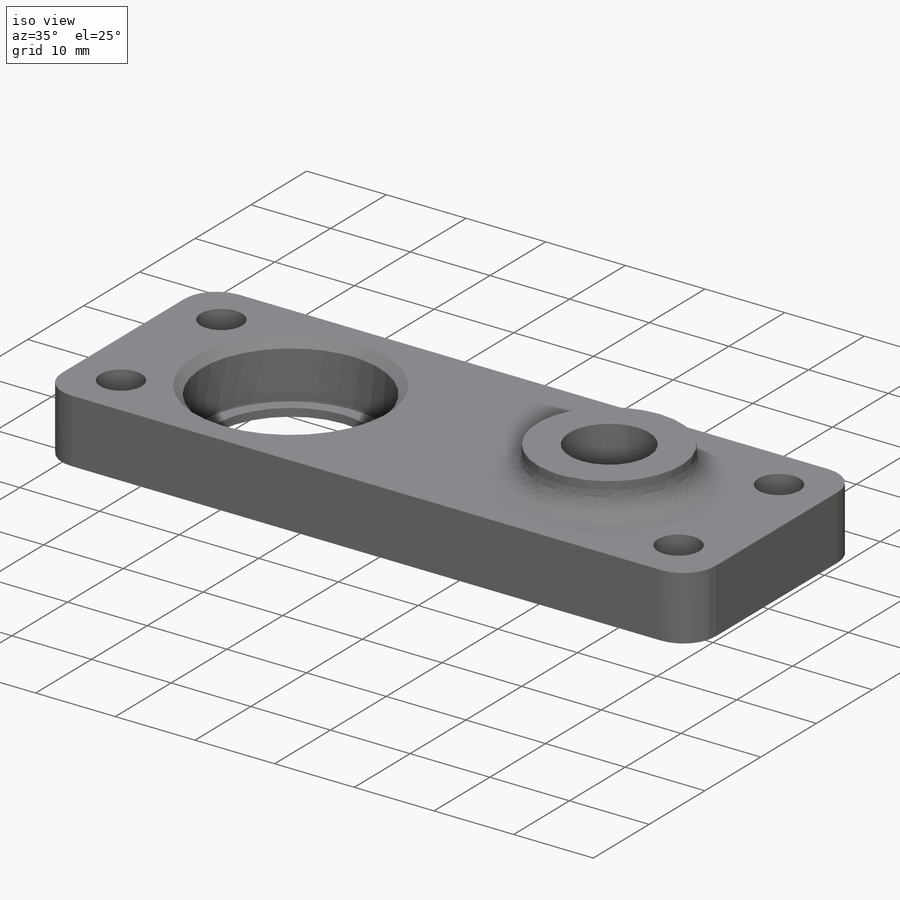
[diagram: iso view]
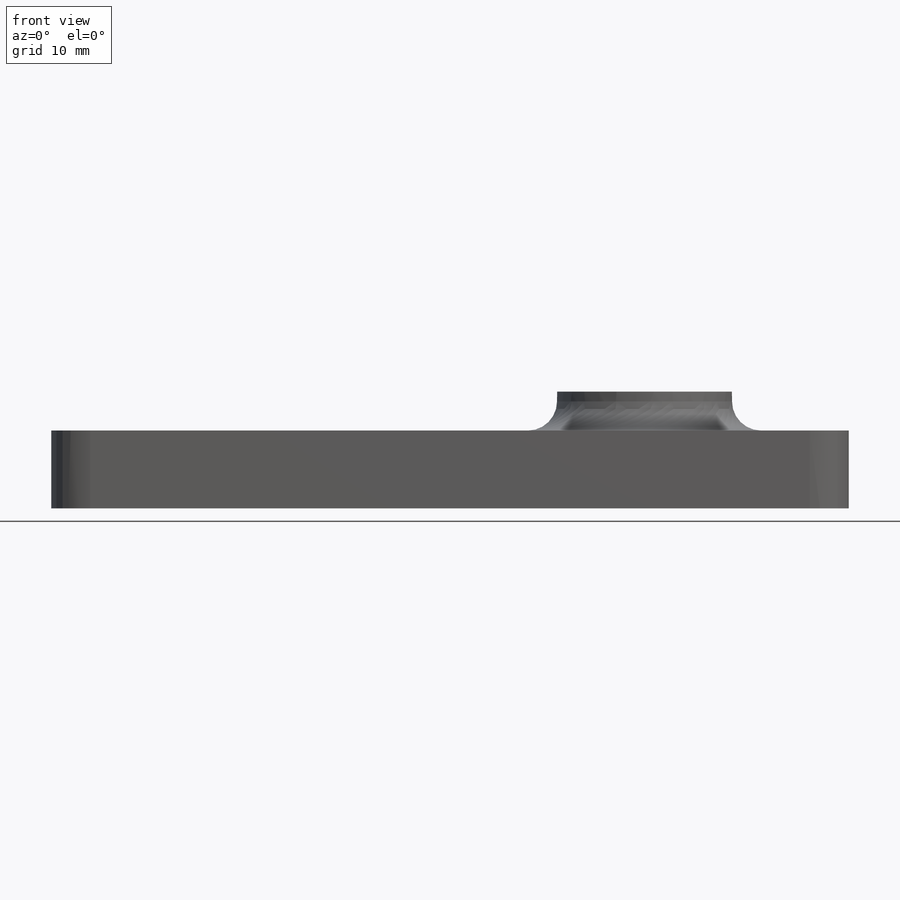
[diagram: front view]
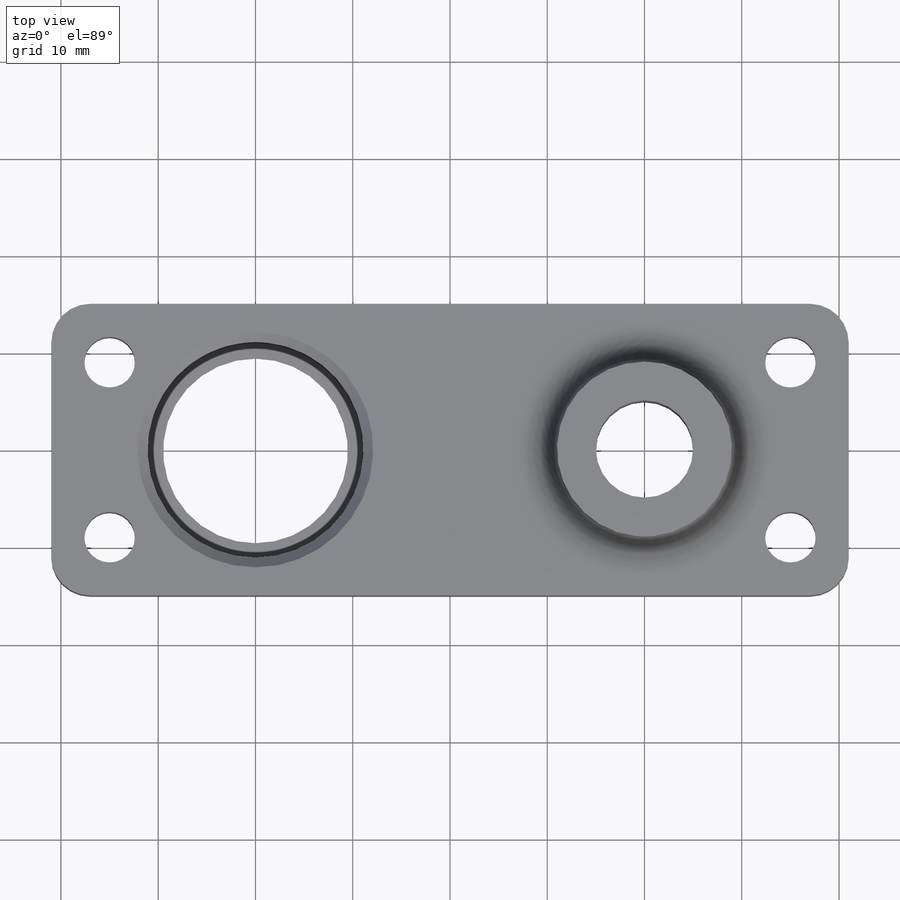
[diagram: top view]
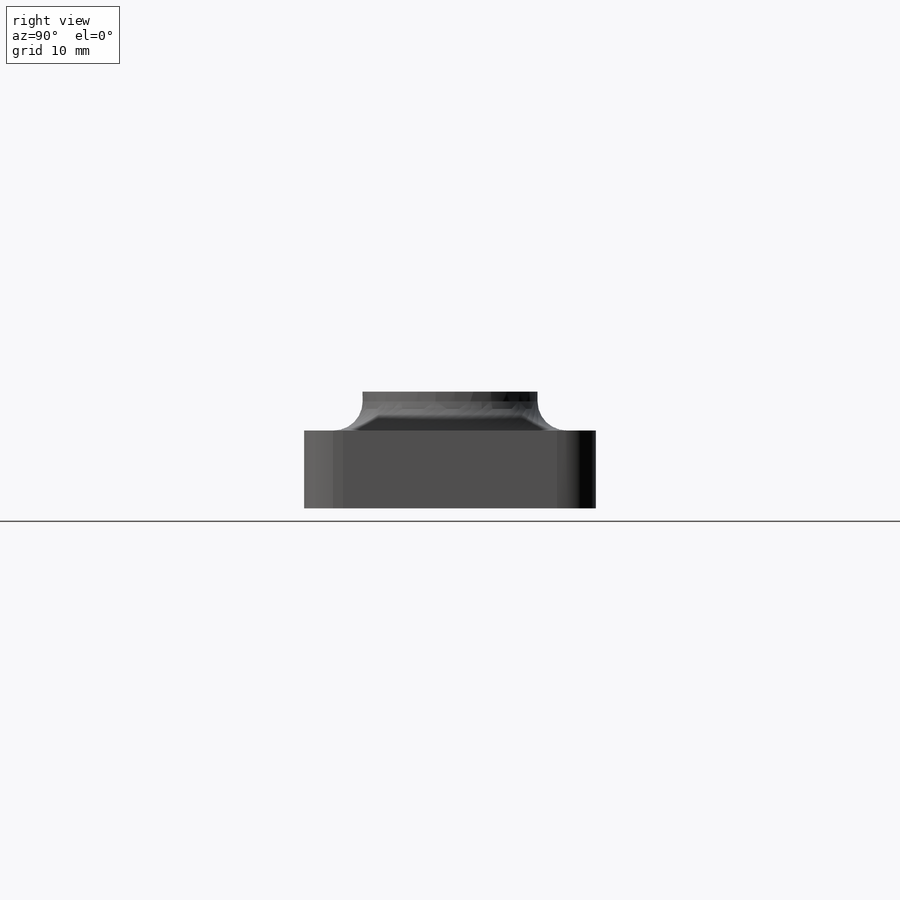
[diagram: right view]
SOLIDWORKS PART (.sldprt)
format: sldprt  version: not decoded by parser v0  size: 209,408 bytes
history: native  units: mm
features: sketch x3, extrude x2, material x1, cut_extrude x1, fillet x1, chamfer x1 (+11 scaffold rows collapsed)
feature tree (20):
  scaffold x11  (default folders/planes/origin — collapsed)
  material  "Material <not specified>"
  sketch  "Sketch1"  dims[c1.D2=19.0mm c1.D3=10.0mm c1.D6=~11.069337mm c1.D7=~28.260103mm c1.D8=5.2mm c1.D12=4.0mm c1.D1=40.0mm c1.D4=~27.537688mm c1.D5=~28.660637mm c2.D4=15.0mm c2.D5=15.0mm c2.D6=18.0mm c2.D7=30.0mm c2.D9=9.0mm c2.D10=6.0mm c2.D11=6.0mm]
  extrude  "Boss-Extrude1"  Depth=8mm
  sketch  "Sketch2"  dims[D1=22.2mm]
  cut_extrude  "Cut-Extrude1"  Depth=7mm
  sketch  "Sketch3"  dims[D1=18.0mm]
  extrude  "Boss-Extrude2"  Depth=4mm
  fillet  "Fillet1"  Radius=3mm
  chamfer  "Chamfer1"  Distance=1mm Angle=45deg
decode coverage: 8 of 8 modeling features carry decoded parameters
note: ~ marks probable driven/reference dimensions
note: suppression state not decoded; provenance and decode notes live in map.json
